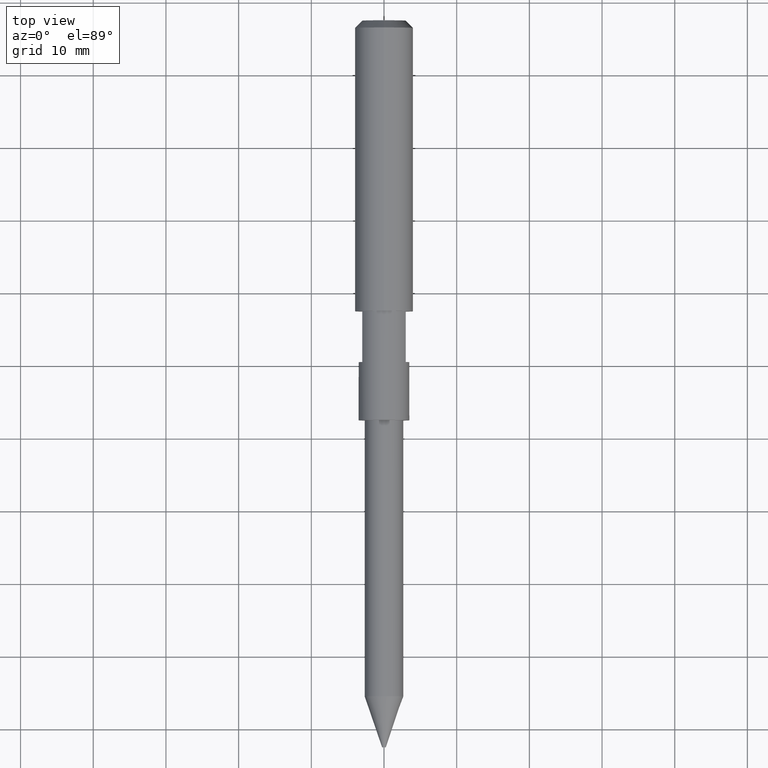
[diagram: clean part render]
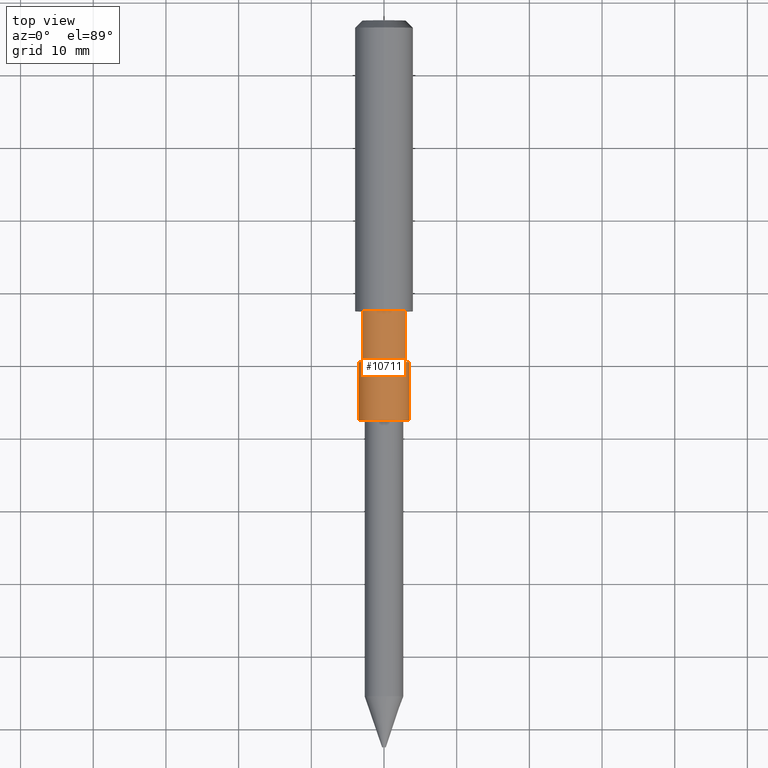
[diagram: same view with one face highlighted and labeled with its STEP entity id]
A machine part, top view. The second image highlights one B-rep face of the part: STEP entity #10711.
In plain terms, the highlighted cylindrical surface (bore or boss wall) has radius 3.5 mm, axis along (-0, -1, -0).
Its self-contained STEP definition (entity closure, byte-faithful):
#147 = ORIENTED_EDGE ( 'NONE', *, *, #3467, .T. ) ;
#552 = EDGE_LOOP ( 'NONE', ( #7283, #6500, #854, #4227, #10259, #15018, #9320, #147 ) ) ;
#564 = EDGE_CURVE ( 'NONE', #9913, #12401, #12234, .T. ) ;
#854 = ORIENTED_EDGE ( 'NONE', *, *, #564, .T. ) ;
#1034 = VECTOR ( 'NONE', #2305, 1000.000000000000000 ) ;
#1492 = CARTESIAN_POINT ( 'NONE',  ( 0.0000000000000000000, 17.39949493661166400, 0.0000000000000000000 ) ) ;
#1521 = CIRCLE ( 'NONE', #12959, 3.500000000000000000 ) ;
#1537 = AXIS2_PLACEMENT_3D ( 'NONE', #10597, #5993, #9301 ) ;
#1576 = VERTEX_POINT ( 'NONE', #10647 ) ;
#1599 = EDGE_CURVE ( 'NONE', #5304, #3273, #11551, .T. ) ;
#1666 = LINE ( 'NONE', #9324, #4044 ) ;
#2046 = ORIENTED_EDGE ( 'NONE', *, *, #3722, .F. ) ;
#2115 = AXIS2_PLACEMENT_3D ( 'NONE', #1492, #2688, #12050 ) ;
#2290 = CARTESIAN_POINT ( 'NONE',  ( -3.000000000000001300, 17.39949493661166400, -1.802775637731992300 ) ) ;
#2305 = DIRECTION ( 'NONE',  ( -0.0000000000000000000, -1.000000000000000000, -0.0000000000000000000 ) ) ;
#2688 = DIRECTION ( 'NONE',  ( -0.0000000000000000000, -1.000000000000000000, -0.0000000000000000000 ) ) ;
#2800 = VERTEX_POINT ( 'NONE', #14641 ) ;
#2922 = CARTESIAN_POINT ( 'NONE',  ( 0.0000000000000000000, 7.500000000000000000, 0.0000000000000000000 ) ) ;
#2947 = EDGE_LOOP ( 'NONE', ( #2046 ) ) ;
#3097 = EDGE_CURVE ( 'NONE', #12401, #3273, #1666, .T. ) ;
#3273 = VERTEX_POINT ( 'NONE', #9990 ) ;
#3467 = EDGE_CURVE ( 'NONE', #4931, #1576, #11390, .T. ) ;
#3649 = DIRECTION ( 'NONE',  ( -0.0000000000000000000, -1.000000000000000000, -0.0000000000000000000 ) ) ;
#3722 = EDGE_CURVE ( 'NONE', #2800, #2800, #8975, .T. ) ;
#3912 = FACE_OUTER_BOUND ( 'NONE', #552, .T. ) ;
#4033 = EDGE_CURVE ( 'NONE', #6131, #4931, #9170, .T. ) ;
#4044 = VECTOR ( 'NONE', #9615, 1000.000000000000000 ) ;
#4182 = DIRECTION ( 'NONE',  ( 0.0000000000000000000, 1.000000000000000000, 0.0000000000000000000 ) ) ;
#4227 = ORIENTED_EDGE ( 'NONE', *, *, #3097, .T. ) ;
#4591 = CARTESIAN_POINT ( 'NONE',  ( -3.000000000000001300, 17.39949493661166400, 1.802775637731992300 ) ) ;
#4906 = CARTESIAN_POINT ( 'NONE',  ( 3.000000000000001300, 17.39949493661166400, -1.802775637731992300 ) ) ;
#4931 = VERTEX_POINT ( 'NONE', #7706 ) ;
#5082 = CARTESIAN_POINT ( 'NONE',  ( -2.999999999999999100, 0.4999999999999991700, 1.802775637731996300 ) ) ;
#5304 = VERTEX_POINT ( 'NONE', #7532 ) ;
#5324 = CARTESIAN_POINT ( 'NONE',  ( 0.0000000000000000000, 0.5000000000000004400, 0.0000000000000000000 ) ) ;
#5423 = DIRECTION ( 'NONE',  ( 1.000000000000000000, -4.336808689942017700E-016, 0.0000000000000000000 ) ) ;
#5516 = DIRECTION ( 'NONE',  ( -0.0000000000000000000, -1.000000000000000000, -0.0000000000000000000 ) ) ;
#5993 = DIRECTION ( 'NONE',  ( 0.0000000000000000000, 1.000000000000000000, 0.0000000000000000000 ) ) ;
#6131 = VERTEX_POINT ( 'NONE', #5082 ) ;
#6500 = ORIENTED_EDGE ( 'NONE', *, *, #10550, .T. ) ;
#6591 = CARTESIAN_POINT ( 'NONE',  ( 0.0000000000000000000, -7.500000000000000000, 0.0000000000000000000 ) ) ;
#6779 = VECTOR ( 'NONE', #9493, 1000.000000000000000 ) ;
#7038 = FACE_OUTER_BOUND ( 'NONE', #2947, .T. ) ;
#7213 = CARTESIAN_POINT ( 'NONE',  ( 2.999999999999999100, 0.5000000000000004400, 1.802775637731992600 ) ) ;
#7283 = ORIENTED_EDGE ( 'NONE', *, *, #11229, .F. ) ;
#7532 = CARTESIAN_POINT ( 'NONE',  ( -3.000000000000000000, 7.500000000000000000, 1.802775637731995200 ) ) ;
#7578 = CYLINDRICAL_SURFACE ( 'NONE', #2115, 3.500000000000000000 ) ;
#7706 = CARTESIAN_POINT ( 'NONE',  ( -2.999999999999999100, 0.4999999999999991700, -1.802775637731996300 ) ) ;
#8633 = EDGE_CURVE ( 'NONE', #5304, #6131, #14992, .T. ) ;
#8878 = DIRECTION ( 'NONE',  ( 1.000000000000000000, 4.336808689942017700E-016, 0.0000000000000000000 ) ) ;
#8932 = CARTESIAN_POINT ( 'NONE',  ( 0.0000000000000000000, 0.5000000000000004400, 0.0000000000000000000 ) ) ;
#8975 = CIRCLE ( 'NONE', #10752, 3.500000000000000000 ) ;
#9170 = CIRCLE ( 'NONE', #12525, 3.500000000000000000 ) ;
#9301 = DIRECTION ( 'NONE',  ( 0.0000000000000000000, 0.0000000000000000000, 1.000000000000000000 ) ) ;
#9320 = ORIENTED_EDGE ( 'NONE', *, *, #4033, .T. ) ;
#9324 = CARTESIAN_POINT ( 'NONE',  ( 3.000000000000001300, 17.39949493661166400, 1.802775637731992300 ) ) ;
#9493 = DIRECTION ( 'NONE',  ( 0.0000000000000000000, 1.000000000000000000, 0.0000000000000000000 ) ) ;
#9615 = DIRECTION ( 'NONE',  ( 0.0000000000000000000, 1.000000000000000000, 0.0000000000000000000 ) ) ;
#9913 = VERTEX_POINT ( 'NONE', #9938 ) ;
#9938 = CARTESIAN_POINT ( 'NONE',  ( 2.999999999999999100, 0.5000000000000004400, -1.802775637731992600 ) ) ;
#9990 = CARTESIAN_POINT ( 'NONE',  ( 3.000000000000000000, 7.500000000000000000, 1.802775637731995200 ) ) ;
#10114 = DIRECTION ( 'NONE',  ( -4.336808689942017700E-016, -1.000000000000000000, -0.0000000000000000000 ) ) ;
#10172 = LINE ( 'NONE', #4906, #14032 ) ;
#10259 = ORIENTED_EDGE ( 'NONE', *, *, #1599, .F. ) ;
#10550 = EDGE_CURVE ( 'NONE', #10931, #9913, #10172, .T. ) ;
#10597 = CARTESIAN_POINT ( 'NONE',  ( 0.0000000000000000000, 7.500000000000000000, 0.0000000000000000000 ) ) ;
#10647 = CARTESIAN_POINT ( 'NONE',  ( -3.000000000000000000, 7.500000000000000000, -1.802775637731995200 ) ) ;
#10711 = ADVANCED_FACE ( 'NONE', ( #3912, #7038 ), #7578, .T. ) ;
#10752 = AXIS2_PLACEMENT_3D ( 'NONE', #6591, #5516, #15037 ) ;
#10931 = VERTEX_POINT ( 'NONE', #12672 ) ;
#11229 = EDGE_CURVE ( 'NONE', #10931, #1576, #1521, .T. ) ;
#11390 = LINE ( 'NONE', #2290, #6779 ) ;
#11551 = CIRCLE ( 'NONE', #1537, 3.500000000000000000 ) ;
#12050 = DIRECTION ( 'NONE',  ( 0.0000000000000000000, 0.0000000000000000000, -1.000000000000000000 ) ) ;
#12234 = CIRCLE ( 'NONE', #14417, 3.500000000000000000 ) ;
#12401 = VERTEX_POINT ( 'NONE', #7213 ) ;
#12445 = DIRECTION ( 'NONE',  ( 4.336808689942017700E-016, -1.000000000000000000, 0.0000000000000000000 ) ) ;
#12525 = AXIS2_PLACEMENT_3D ( 'NONE', #8932, #12445, #8878 ) ;
#12672 = CARTESIAN_POINT ( 'NONE',  ( 3.000000000000000000, 7.500000000000000000, -1.802775637731995000 ) ) ;
#12959 = AXIS2_PLACEMENT_3D ( 'NONE', #2922, #4182, #13739 ) ;
#13739 = DIRECTION ( 'NONE',  ( 0.0000000000000000000, 0.0000000000000000000, 1.000000000000000000 ) ) ;
#14032 = VECTOR ( 'NONE', #3649, 1000.000000000000000 ) ;
#14417 = AXIS2_PLACEMENT_3D ( 'NONE', #5324, #10114, #5423 ) ;
#14641 = CARTESIAN_POINT ( 'NONE',  ( 0.0000000000000000000, -7.500000000000000000, 3.500000000000000000 ) ) ;
#14992 = LINE ( 'NONE', #4591, #1034 ) ;
#15018 = ORIENTED_EDGE ( 'NONE', *, *, #8633, .T. ) ;
#15037 = DIRECTION ( 'NONE',  ( 0.0000000000000000000, 0.0000000000000000000, 1.000000000000000000 ) ) ;